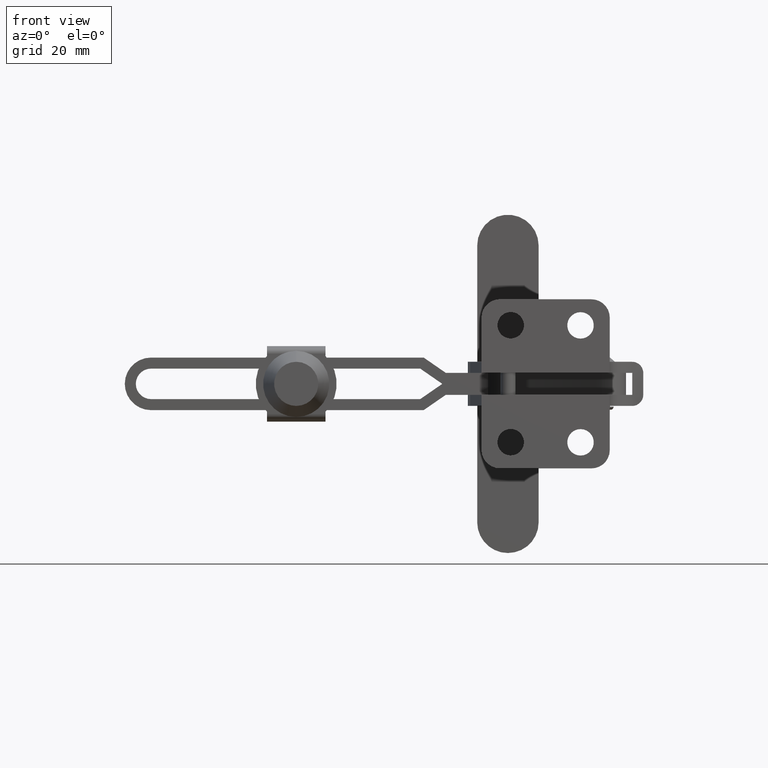
[diagram: clean part render]
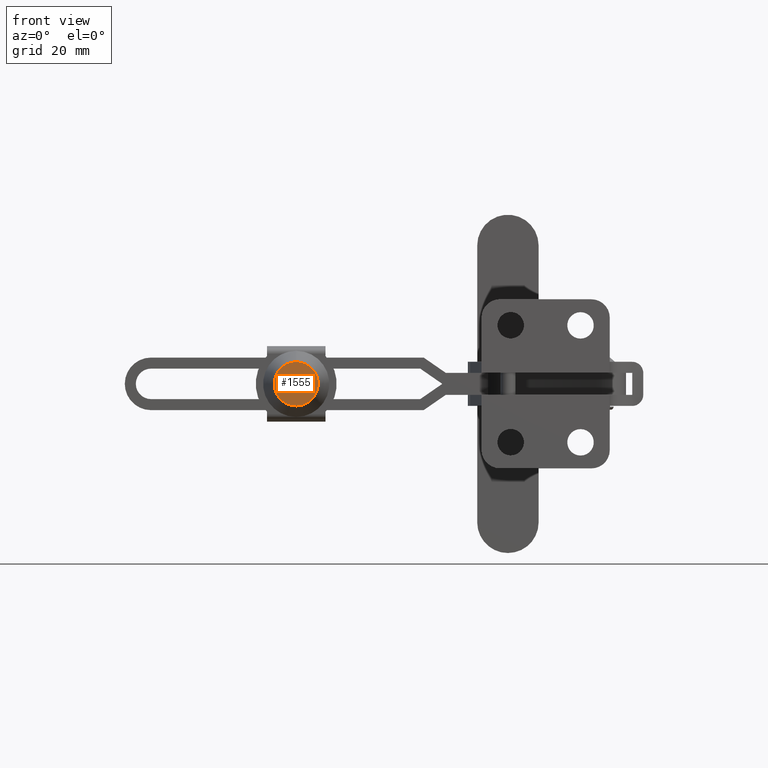
[diagram: same view with one face highlighted and labeled with its STEP entity id]
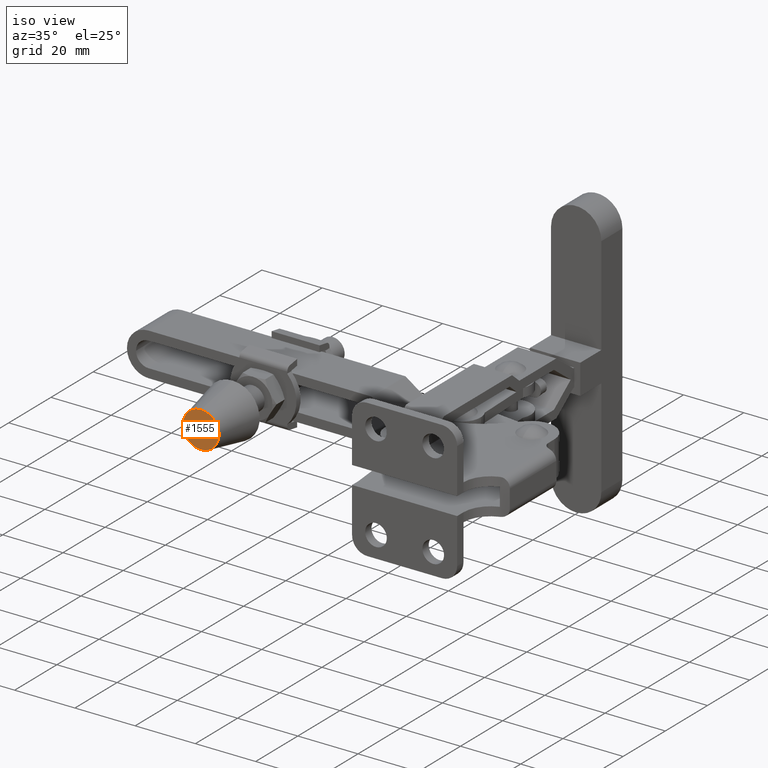
[diagram: same view with one face highlighted and labeled with its STEP entity id]
A machine part, front view. The second image highlights one B-rep face of the part: STEP entity #1555.
A second angle (iso view) of the same face is appended — the face is thin or edge-on in the first view.
In plain terms, the highlighted planar face has unit normal (0, -1, 0).
Its self-contained STEP definition (entity closure, byte-faithful):
#628 = CARTESIAN_POINT ( 'NONE',  ( -94.37569315383768800, 0.2999999999995207600, -5.999999999999967100 ) ) ;
#737 = FACE_OUTER_BOUND ( 'NONE', #4077, .T. ) ;
#1555 = ADVANCED_FACE ( 'NONE', ( #737 ), #4745, .T. ) ;
#2168 = AXIS2_PLACEMENT_3D ( 'NONE', #10072, #4817, #9836 ) ;
#2614 = ORIENTED_EDGE ( 'NONE', *, *, #3752, .T. ) ;
#3704 = CARTESIAN_POINT ( 'NONE',  ( -94.37569315383768800, 0.2999999999995207600, 3.295974604355933500E-014 ) ) ;
#3752 = EDGE_CURVE ( 'NONE', #10718, #5316, #6611, .T. ) ;
#3884 = ORIENTED_EDGE ( 'NONE', *, *, #4847, .T. ) ;
#4077 = EDGE_LOOP ( 'NONE', ( #3884, #2614 ) ) ;
#4079 = DIRECTION ( 'NONE',  ( 0.0000000000000000000, -1.000000000000000000, -0.0000000000000000000 ) ) ;
#4745 = PLANE ( 'NONE',  #9888 ) ;
#4817 = DIRECTION ( 'NONE',  ( -0.0000000000000000000, -1.000000000000000000, -0.0000000000000000000 ) ) ;
#4847 = EDGE_CURVE ( 'NONE', #5316, #10718, #8886, .T. ) ;
#5001 = CARTESIAN_POINT ( 'NONE',  ( -88.37569315383768800, 0.2999999999995207100, 3.295974604355933500E-014 ) ) ;
#5316 = VERTEX_POINT ( 'NONE', #5939 ) ;
#5939 = CARTESIAN_POINT ( 'NONE',  ( -94.37569315383768800, 0.2999999999995207600, 6.000000000000032900 ) ) ;
#6055 = DIRECTION ( 'NONE',  ( -0.0000000000000000000, -1.000000000000000000, -0.0000000000000000000 ) ) ;
#6611 = CIRCLE ( 'NONE', #8387, 6.000000000000000000 ) ;
#8387 = AXIS2_PLACEMENT_3D ( 'NONE', #3704, #6055, #10541 ) ;
#8886 = CIRCLE ( 'NONE', #2168, 6.000000000000000000 ) ;
#9836 = DIRECTION ( 'NONE',  ( 0.0000000000000000000, 0.0000000000000000000, -1.000000000000000000 ) ) ;
#9888 = AXIS2_PLACEMENT_3D ( 'NONE', #5001, #4079, #11015 ) ;
#10072 = CARTESIAN_POINT ( 'NONE',  ( -94.37569315383768800, 0.2999999999995207600, 3.295974604355933500E-014 ) ) ;
#10541 = DIRECTION ( 'NONE',  ( 0.0000000000000000000, 0.0000000000000000000, -1.000000000000000000 ) ) ;
#10718 = VERTEX_POINT ( 'NONE', #628 ) ;
#11015 = DIRECTION ( 'NONE',  ( 0.0000000000000000000, 0.0000000000000000000, -1.000000000000000000 ) ) ;